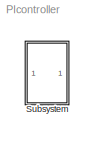
MODEL PIcontroller
KIND model
CONFIG AbsTol = auto
CONFIG FixedStep = auto
CONFIG MaxStep = auto
CONFIG MinStep = auto
CONFIG RelTol = 1e-3
CONFIG Solver = ode45
CONFIG SolverMode = Auto
CONFIG StartTime = 0.0
CONFIG StopTime = 10.0
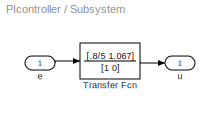
BLOCK [SubSystem] Subsystem
  Ports = [1, 1]
  RTWFcnNameOpts = Auto
  RTWFileNameOpts = Auto
  RTWSystemCode = Auto
  ShowPortLabels = on
  TreatAsAtomicUnit = off
BLOCK [TransferFcn] Subsystem/Transfer Fcn
  AbsoluteTolerance = auto
  Denominator = [1 0]
  Numerator = [.8/5 1.067]
  Realization = auto
BLOCK [Inport] Subsystem/e
  Interpolate = on
  LatchInput = off
  Port = 1
BLOCK [Outport] Subsystem/u
  InitialOutput = []
  OutputWhenDisabled = held
  Port = 1
LINE Subsystem/Transfer Fcn:1 -> Subsystem/u:1
LINE Subsystem/e:1 -> Subsystem/Transfer Fcn:1
